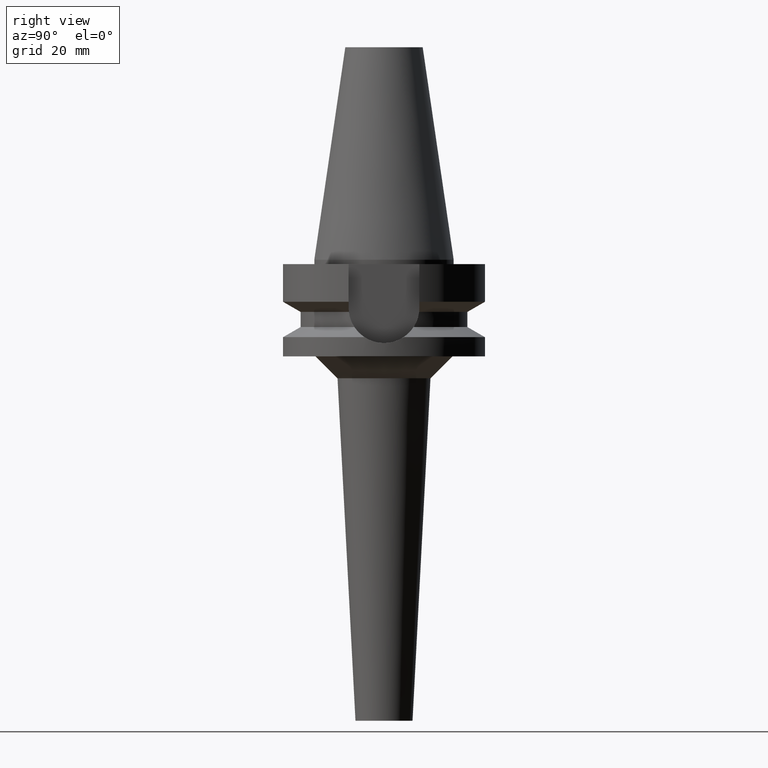
[diagram: clean part render]
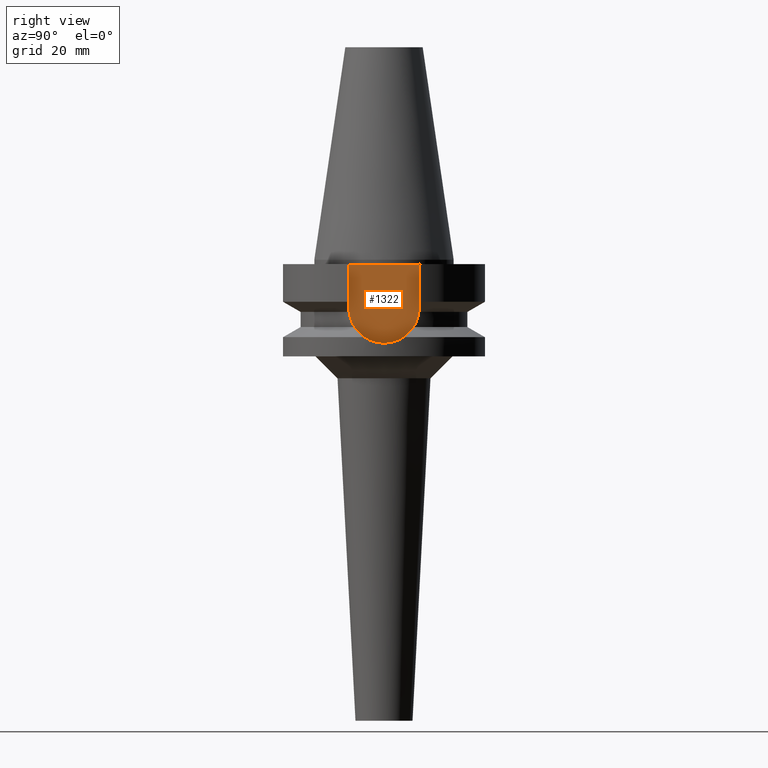
[diagram: same view with one face highlighted and labeled with its STEP entity id]
A machine part, right view. The second image highlights one B-rep face of the part: STEP entity #1322.
In plain terms, the highlighted planar face has unit normal (1, 0, 0).
Its self-contained STEP definition (entity closure, byte-faithful):
#124=DIRECTION('',(0.E0,-1.E0,0.E0));
#125=VECTOR('',#124,1.61E1);
#126=CARTESIAN_POINT('',(1.63E1,8.05E0,-1.E0));
#127=LINE('',#126,#125);
#293=DIRECTION('',(0.E0,0.E0,-1.E0));
#294=VECTOR('',#293,9.95E0);
#295=CARTESIAN_POINT('',(1.63E1,8.05E0,-1.E0));
#296=LINE('',#295,#294);
#300=CARTESIAN_POINT('',(1.63E1,0.E0,-1.095E1));
#301=DIRECTION('',(-1.E0,0.E0,0.E0));
#302=DIRECTION('',(0.E0,1.E0,0.E0));
#303=AXIS2_PLACEMENT_3D('',#300,#301,#302);
#308=CARTESIAN_POINT('',(1.63E1,0.E0,-1.095E1));
#309=DIRECTION('',(-1.E0,0.E0,0.E0));
#310=DIRECTION('',(0.E0,0.E0,-1.E0));
#311=AXIS2_PLACEMENT_3D('',#308,#309,#310);
#316=DIRECTION('',(0.E0,0.E0,1.E0));
#317=VECTOR('',#316,9.95E0);
#318=CARTESIAN_POINT('',(1.63E1,-8.05E0,-1.095E1));
#319=LINE('',#318,#317);
#1045=CARTESIAN_POINT('',(1.63E1,-8.05E0,-1.095E1));
#1046=VERTEX_POINT('',#1045);
#1047=CARTESIAN_POINT('',(1.63E1,0.E0,-1.9E1));
#1048=VERTEX_POINT('',#1047);
#1049=CARTESIAN_POINT('',(1.63E1,8.05E0,-1.095E1));
#1050=VERTEX_POINT('',#1049);
#1099=CARTESIAN_POINT('',(1.63E1,8.05E0,-1.E0));
#1100=VERTEX_POINT('',#1099);
#1101=CARTESIAN_POINT('',(1.63E1,-8.05E0,-1.E0));
#1102=VERTEX_POINT('',#1101);
#1307=CARTESIAN_POINT('',(1.63E1,0.E0,0.E0));
#1308=DIRECTION('',(1.E0,0.E0,0.E0));
#1309=DIRECTION('',(0.E0,0.E0,-1.E0));
#1310=AXIS2_PLACEMENT_3D('',#1307,#1308,#1309);
#1311=PLANE('',#1310);
#1312=ORIENTED_EDGE('',*,*,#1204,.F.);
#1314=ORIENTED_EDGE('',*,*,#1313,.T.);
#1316=ORIENTED_EDGE('',*,*,#1315,.T.);
#1318=ORIENTED_EDGE('',*,*,#1317,.T.);
#1319=ORIENTED_EDGE('',*,*,#1300,.T.);
#1320=EDGE_LOOP('',(#1312,#1314,#1316,#1318,#1319));
#1321=FACE_OUTER_BOUND('',#1320,.F.);
#304=CIRCLE('',#303,8.05E0);
#312=CIRCLE('',#311,8.05E0);
#1204=EDGE_CURVE('',#1100,#1102,#127,.T.);
#1300=EDGE_CURVE('',#1046,#1102,#319,.T.);
#1313=EDGE_CURVE('',#1100,#1050,#296,.T.);
#1315=EDGE_CURVE('',#1050,#1048,#304,.T.);
#1317=EDGE_CURVE('',#1048,#1046,#312,.T.);
#1322=ADVANCED_FACE('',(#1321),#1311,.T.);